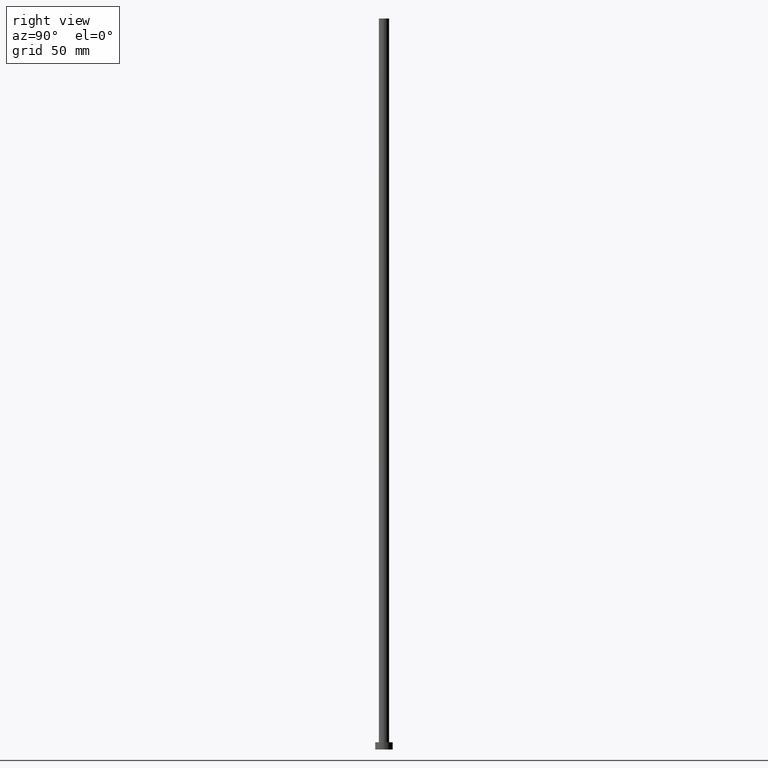
[diagram: clean part render]
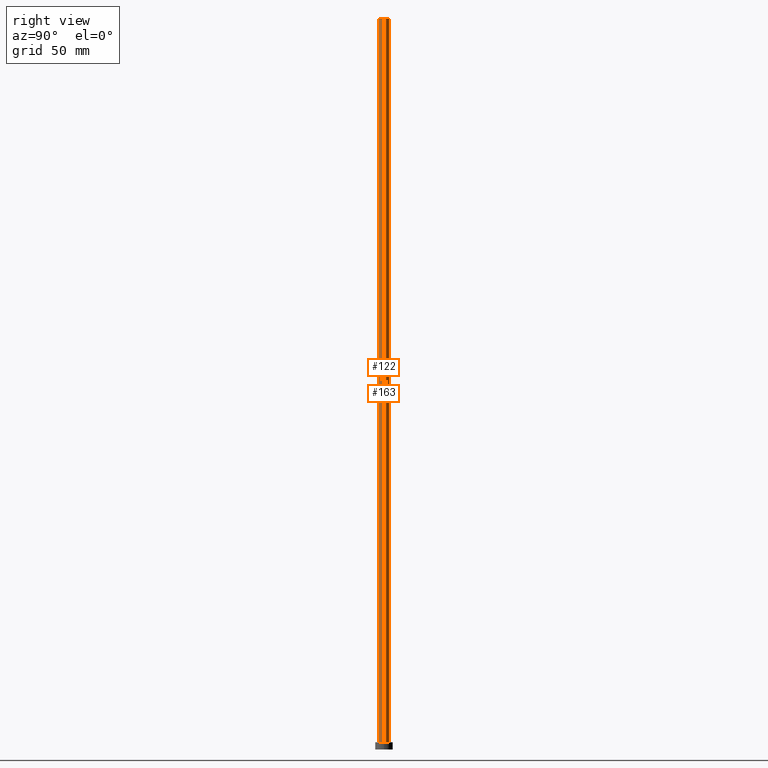
[diagram: same view with one multi-face feature highlighted, each face labeled with its STEP entity id]
A machine part, right view. The highlighted faces form ONE feature: a constant-radius fillet chain: 2 tangent blend faces with common blend radius 3.5 mm. The faces share edges in the B-rep.
Their STEP definitions:
[1] entity #163 (Cylinder):
#10 = LINE ( 'NONE', #251, #80 ) ;
#12 = VERTEX_POINT ( 'NONE', #189 ) ;
#15 = CYLINDRICAL_SURFACE ( 'NONE', #191, 3.500000000000000000 ) ;
#20 = EDGE_CURVE ( 'NONE', #209, #56, #10, .T. ) ;
#29 = CARTESIAN_POINT ( 'NONE',  ( -3.500000000000000000, 0.000000000000000000, 500.0000000000000000 ) ) ;
#30 = EDGE_LOOP ( 'NONE', ( #205, #87, #58, #224 ) ) ;
#31 = DIRECTION ( 'NONE',  ( 0.000000000000000000, 0.000000000000000000, 1.000000000000000000 ) ) ;
#37 = CARTESIAN_POINT ( 'NONE',  ( 3.500000000000000000, 4.286263797015736595E-16, 500.0000000000000000 ) ) ;
#56 = VERTEX_POINT ( 'NONE', #117 ) ;
#58 = ORIENTED_EDGE ( 'NONE', *, *, #226, .T. ) ;
#59 = LINE ( 'NONE', #170, #88 ) ;
#80 = VECTOR ( 'NONE', #176, 1000.000000000000000 ) ;
#86 = EDGE_CURVE ( 'NONE', #241, #12, #59, .T. ) ;
#87 = ORIENTED_EDGE ( 'NONE', *, *, #86, .T. ) ;
#88 = VECTOR ( 'NONE', #210, 1000.000000000000000 ) ;
#89 = CARTESIAN_POINT ( 'NONE',  ( 0.000000000000000000, 0.000000000000000000, 500.0000000000000000 ) ) ;
#99 = FACE_OUTER_BOUND ( 'NONE', #30, .T. ) ;
#117 = CARTESIAN_POINT ( 'NONE',  ( -3.500000000000000000, 0.000000000000000000, 5.000000000000000000 ) ) ;
#119 = CARTESIAN_POINT ( 'NONE',  ( 0.000000000000000000, 0.000000000000000000, 500.0000000000000000 ) ) ;
#142 = AXIS2_PLACEMENT_3D ( 'NONE', #248, #31, #172 ) ;
#145 = EDGE_CURVE ( 'NONE', #241, #209, #157, .T. ) ;
#157 = CIRCLE ( 'NONE', #179, 3.500000000000000000 ) ;
#163 = ADVANCED_FACE ( 'NONE', ( #99 ), #15, .T. ) ;
#165 = CIRCLE ( 'NONE', #142, 3.500000000000000000 ) ;
#169 = DIRECTION ( 'NONE',  ( 1.000000000000000000, 0.000000000000000000, 0.000000000000000000 ) ) ;
#170 = CARTESIAN_POINT ( 'NONE',  ( 3.500000000000000000, 4.286263797015736595E-16, 500.0000000000000000 ) ) ;
#172 = DIRECTION ( 'NONE',  ( 1.000000000000000000, 0.000000000000000000, 0.000000000000000000 ) ) ;
#176 = DIRECTION ( 'NONE',  ( -0.000000000000000000, -0.000000000000000000, -1.000000000000000000 ) ) ;
#179 = AXIS2_PLACEMENT_3D ( 'NONE', #119, #208, #169 ) ;
#189 = CARTESIAN_POINT ( 'NONE',  ( 3.500000000000000000, 4.286263797015736595E-16, 5.000000000000000000 ) ) ;
#191 = AXIS2_PLACEMENT_3D ( 'NONE', #89, #228, #192 ) ;
#192 = DIRECTION ( 'NONE',  ( -1.000000000000000000, 0.000000000000000000, 0.000000000000000000 ) ) ;
#205 = ORIENTED_EDGE ( 'NONE', *, *, #145, .F. ) ;
#208 = DIRECTION ( 'NONE',  ( 0.000000000000000000, 0.000000000000000000, 1.000000000000000000 ) ) ;
#209 = VERTEX_POINT ( 'NONE', #29 ) ;
#210 = DIRECTION ( 'NONE',  ( -0.000000000000000000, -0.000000000000000000, -1.000000000000000000 ) ) ;
#224 = ORIENTED_EDGE ( 'NONE', *, *, #20, .F. ) ;
#226 = EDGE_CURVE ( 'NONE', #12, #56, #165, .T. ) ;
#228 = DIRECTION ( 'NONE',  ( -0.000000000000000000, -0.000000000000000000, -1.000000000000000000 ) ) ;
#241 = VERTEX_POINT ( 'NONE', #37 ) ;
#248 = CARTESIAN_POINT ( 'NONE',  ( 0.000000000000000000, 0.000000000000000000, 5.000000000000000000 ) ) ;
#251 = CARTESIAN_POINT ( 'NONE',  ( -3.500000000000000000, 0.000000000000000000, 500.0000000000000000 ) ) ;
[2] entity #122 (Cylinder):
#10 = LINE ( 'NONE', #251, #80 ) ;
#12 = VERTEX_POINT ( 'NONE', #189 ) ;
#13 = AXIS2_PLACEMENT_3D ( 'NONE', #180, #227, #253 ) ;
#16 = DIRECTION ( 'NONE',  ( 0.000000000000000000, 0.000000000000000000, 1.000000000000000000 ) ) ;
#17 = FACE_OUTER_BOUND ( 'NONE', #154, .T. ) ;
#20 = EDGE_CURVE ( 'NONE', #209, #56, #10, .T. ) ;
#24 = EDGE_CURVE ( 'NONE', #56, #12, #252, .T. ) ;
#29 = CARTESIAN_POINT ( 'NONE',  ( -3.500000000000000000, 0.000000000000000000, 500.0000000000000000 ) ) ;
#37 = CARTESIAN_POINT ( 'NONE',  ( 3.500000000000000000, 4.286263797015736595E-16, 500.0000000000000000 ) ) ;
#56 = VERTEX_POINT ( 'NONE', #117 ) ;
#57 = DIRECTION ( 'NONE',  ( 1.000000000000000000, 0.000000000000000000, 0.000000000000000000 ) ) ;
#59 = LINE ( 'NONE', #170, #88 ) ;
#75 = CARTESIAN_POINT ( 'NONE',  ( 0.000000000000000000, 0.000000000000000000, 5.000000000000000000 ) ) ;
#80 = VECTOR ( 'NONE', #176, 1000.000000000000000 ) ;
#86 = EDGE_CURVE ( 'NONE', #241, #12, #59, .T. ) ;
#88 = VECTOR ( 'NONE', #210, 1000.000000000000000 ) ;
#91 = ORIENTED_EDGE ( 'NONE', *, *, #121, .F. ) ;
#100 = CYLINDRICAL_SURFACE ( 'NONE', #13, 3.500000000000000000 ) ;
#117 = CARTESIAN_POINT ( 'NONE',  ( -3.500000000000000000, 0.000000000000000000, 5.000000000000000000 ) ) ;
#121 = EDGE_CURVE ( 'NONE', #209, #241, #167, .T. ) ;
#122 = ADVANCED_FACE ( 'NONE', ( #17 ), #100, .T. ) ;
#137 = DIRECTION ( 'NONE',  ( 0.000000000000000000, 0.000000000000000000, 1.000000000000000000 ) ) ;
#154 = EDGE_LOOP ( 'NONE', ( #243, #91, #244, #249 ) ) ;
#158 = DIRECTION ( 'NONE',  ( 1.000000000000000000, 0.000000000000000000, 0.000000000000000000 ) ) ;
#159 = CARTESIAN_POINT ( 'NONE',  ( 0.000000000000000000, 0.000000000000000000, 500.0000000000000000 ) ) ;
#167 = CIRCLE ( 'NONE', #204, 3.500000000000000000 ) ;
#170 = CARTESIAN_POINT ( 'NONE',  ( 3.500000000000000000, 4.286263797015736595E-16, 500.0000000000000000 ) ) ;
#176 = DIRECTION ( 'NONE',  ( -0.000000000000000000, -0.000000000000000000, -1.000000000000000000 ) ) ;
#180 = CARTESIAN_POINT ( 'NONE',  ( 0.000000000000000000, 0.000000000000000000, 500.0000000000000000 ) ) ;
#189 = CARTESIAN_POINT ( 'NONE',  ( 3.500000000000000000, 4.286263797015736595E-16, 5.000000000000000000 ) ) ;
#204 = AXIS2_PLACEMENT_3D ( 'NONE', #159, #16, #57 ) ;
#209 = VERTEX_POINT ( 'NONE', #29 ) ;
#210 = DIRECTION ( 'NONE',  ( -0.000000000000000000, -0.000000000000000000, -1.000000000000000000 ) ) ;
#227 = DIRECTION ( 'NONE',  ( -0.000000000000000000, -0.000000000000000000, -1.000000000000000000 ) ) ;
#240 = AXIS2_PLACEMENT_3D ( 'NONE', #75, #137, #158 ) ;
#241 = VERTEX_POINT ( 'NONE', #37 ) ;
#243 = ORIENTED_EDGE ( 'NONE', *, *, #86, .F. ) ;
#244 = ORIENTED_EDGE ( 'NONE', *, *, #20, .T. ) ;
#249 = ORIENTED_EDGE ( 'NONE', *, *, #24, .T. ) ;
#251 = CARTESIAN_POINT ( 'NONE',  ( -3.500000000000000000, 0.000000000000000000, 500.0000000000000000 ) ) ;
#252 = CIRCLE ( 'NONE', #240, 3.500000000000000000 ) ;
#253 = DIRECTION ( 'NONE',  ( -1.000000000000000000, 0.000000000000000000, 0.000000000000000000 ) ) ;